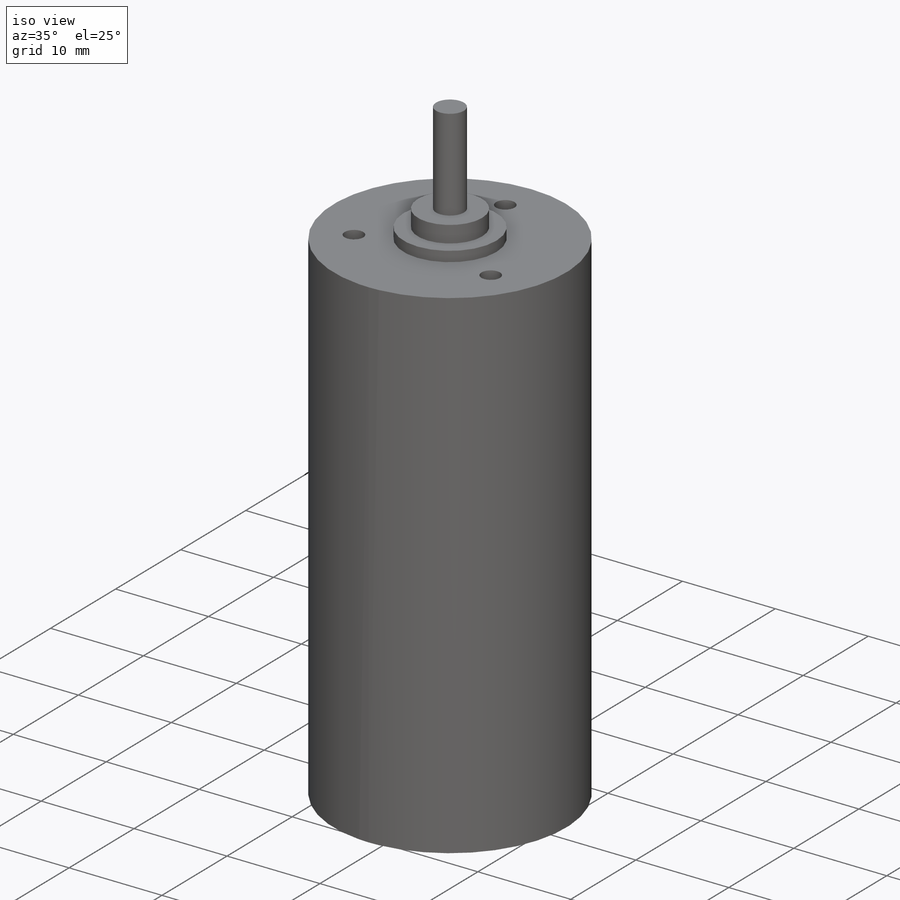
[diagram: iso view]
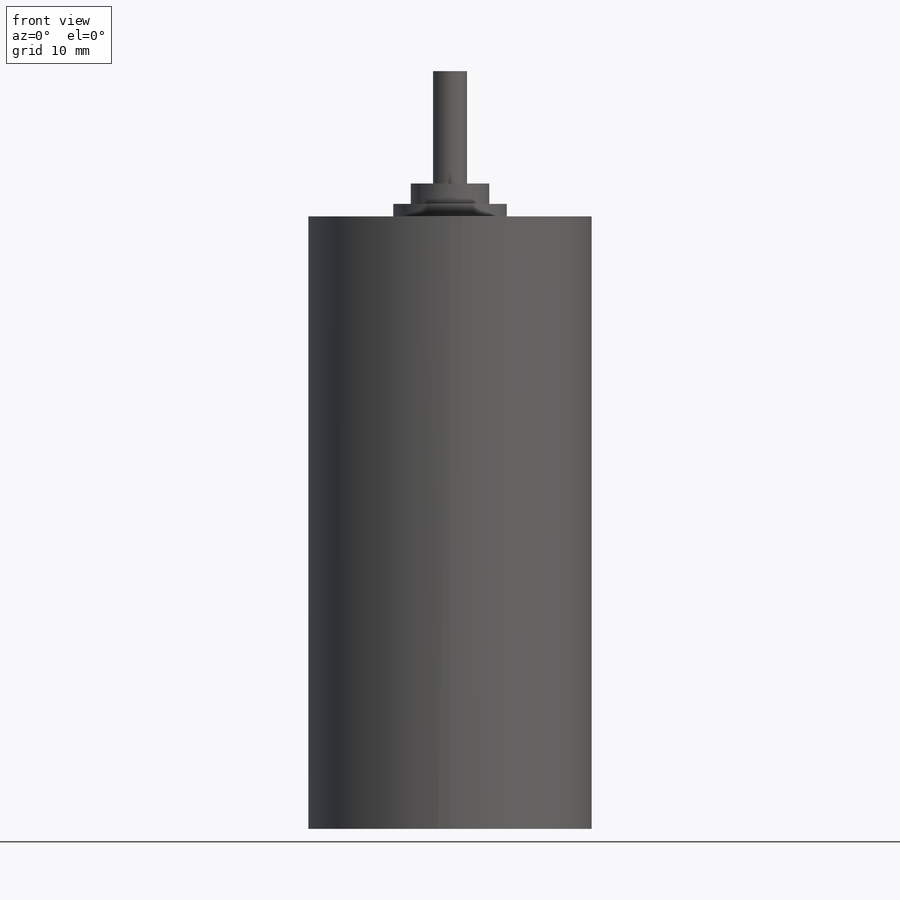
[diagram: front view]
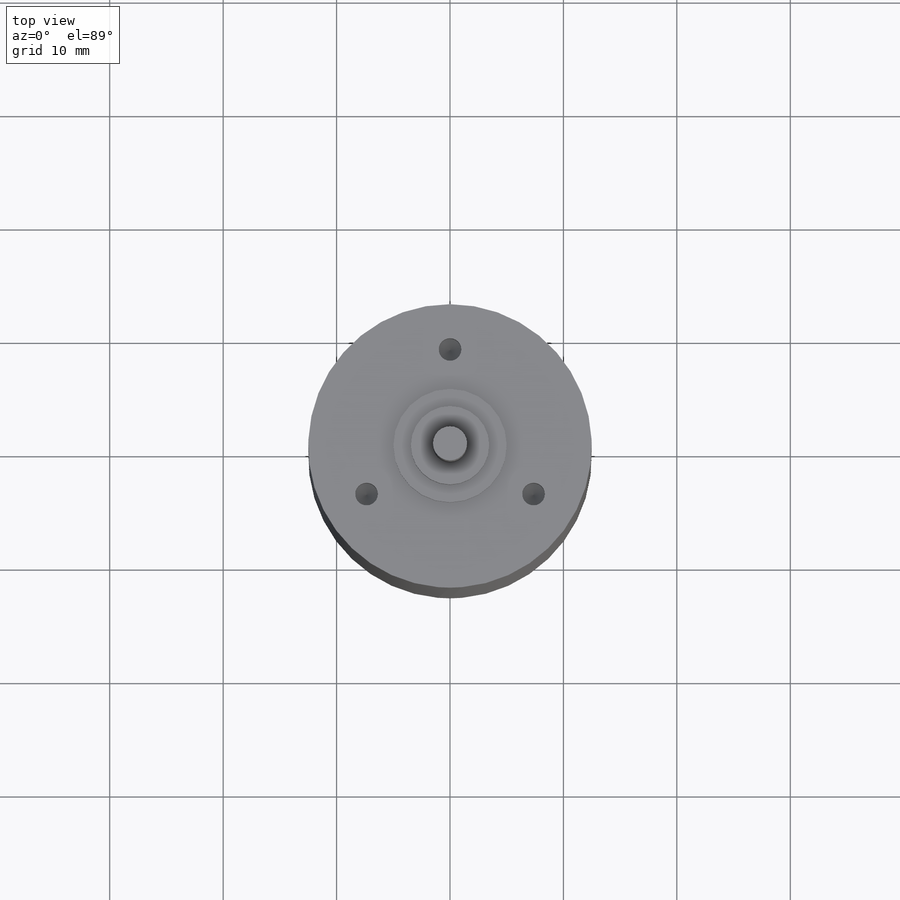
[diagram: top view]
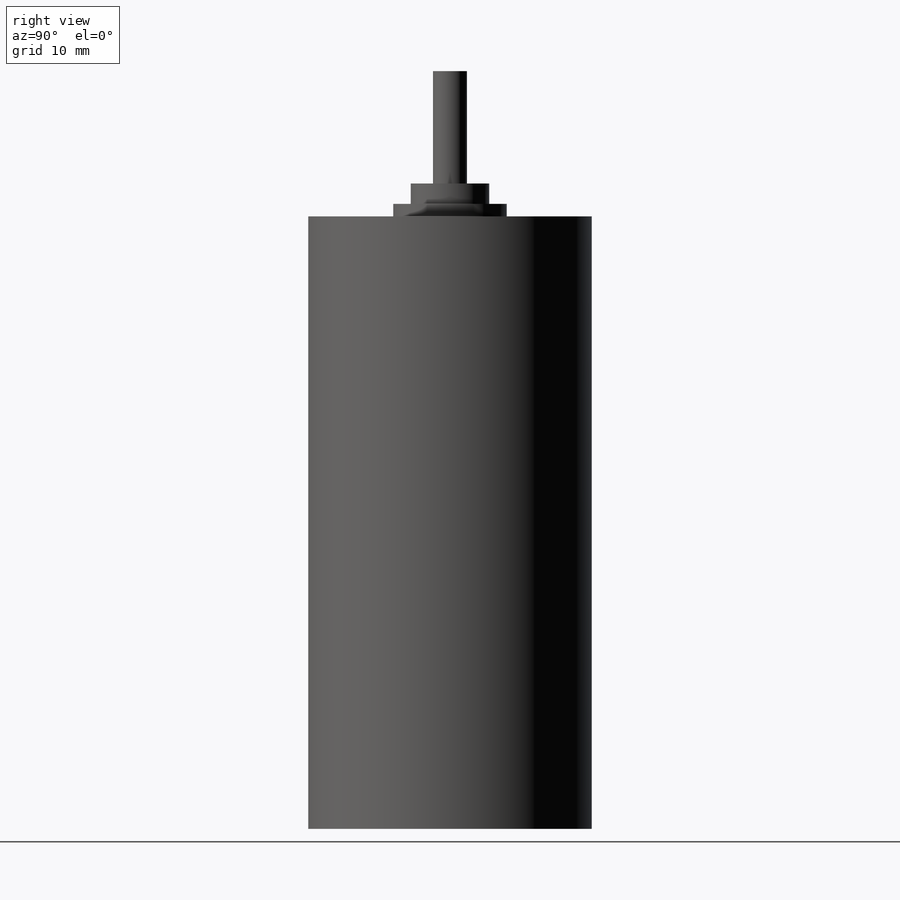
[diagram: right view]
SOLIDWORKS PART (.sldprt)
format: sldprt  version: not decoded by parser v0  size: 192,512 bytes
history: native  units: mm
features: sketch x7, extrude x4, material x1, hole x1 (+12 scaffold rows collapsed)
feature tree (25):
  scaffold x12  (default folders/planes/origin — collapsed)
  material  "Custom Plastic"
  sketch  "Sketch1"  dims[D1=25.0mm]
  extrude  "Boss-Extrude1"  Depth=54mm
  sketch  "Sketch2"  dims[D1=10.0mm]
  extrude  "Boss-Extrude2"  Depth=1.1mm
  sketch  "Sketch3"
  extrude  "Boss-Extrude3"  Depth=1.8mm
  sketch  "Sketch4"  dims[D1=3.0mm]
  extrude  "Boss-Extrude4"  Depth=9.9mm
  sketch  "Sketch5"  dims[c1.D2=17.0mm c1.D1=~9.751112mm c2.D1=60.0deg]
  hole  "Ø2.0mm Dowel Hole1"  Diameter=2mm Depth=2.899994mm
  sketch  "Sketch7"
  sketch  "Sketch6"  dims[hole-wizard template sketch: 47 standard entries collapsed; hole parameters kept: c15.Hole Depth=~2.899994mm c15.D3=~14.816244mm c15.Drill Angle=118.0deg]
decode coverage: 10 of 12 modeling features carry decoded parameters
note: ~ marks probable driven/reference dimensions
note: suppression state not decoded; provenance and decode notes live in map.json
